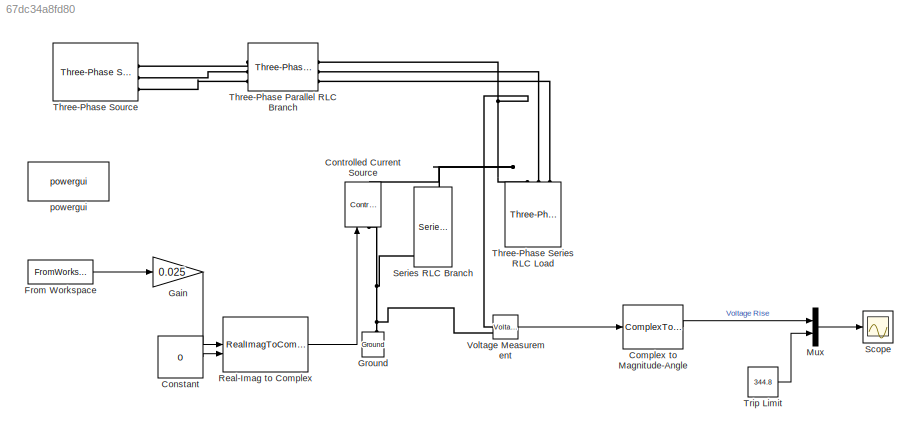
MODEL slx_67dc34a8fd80
KIND model
CONFIG AbsTol = auto
CONFIG EnableMultiTasking = off
CONFIG FixedStep = auto
CONFIG MaxStep = auto
CONFIG MinStep = auto
CONFIG RelTol = 1e-3
CONFIG SampleTimeConstraint = Unconstrained
CONFIG SolverName = VariableStepAuto
CONFIG StartTime = 0.0
CONFIG StopTime = 86400
BLOCK [ComplexToMagnitudeAngle] Complex to Magnitude-Angle 
BLOCK [Constant] Constant
  Value = 0
BLOCK [Reference] Controlled Current Source   REF=spsControlledCurrentSourceLib/Controlled Current Source
  LibrarySourceBlock = sps_lib/Sources/Controlled Current Source
  SourceBlock = spsControlledCurrentSourceLib/Controlled Current Source
  SourceType = Controlled Current Source
BLOCK [FromWorkspace] From Workspace 
  OutputAfterFinalValue = Setting to zero
  VariableName = solar_profile
BLOCK [Gain] Gain 
  Gain = 0.025
BLOCK [Reference] Ground  REF=spsGroundLib/Ground
  LibrarySourceBlock = sps_lib/Utilities/Ground
  NameLocation = right
  SourceBlock = spsGroundLib/Ground
  SourceType = Ground
BLOCK [Mux] Mux
  DisplayOption = bar
  Inputs = 2
BLOCK [RealImagToComplex] Real-Imag to Complex 
BLOCK [Scope] Scope
  Floating = off
  NumInputPorts = 1
  ScopeSpecificationString = Simulink.scopes.TimeScopeBlockCfg('CurrentConfiguration', extmgr.ConfigurationSet(extmgr.Configuration('Core','General UI',true),extmgr.Configuration('Core','Source UI',true),extmgr.Configuration('Sources','WiredSimulink',true),extmgr.Configuration('Visuals','Time Domain',true,'SerializedDisplays',{struct('MinYLimReal','317.13559','MaxYLimReal','368.63425','YLabelReal','','MinYLimMag','317.13559',...<+1514ch>
BLOCK [Reference] Series RLC Branch   REF=spsSeriesRLCBranchLib/Series RLC Branch
  LibrarySourceBlock = sps_lib/Passives/Series RLC Branch
  NameLocation = left
  SourceBlock = spsSeriesRLCBranchLib/Series RLC Branch
  SourceType = Series RLC Branch
BLOCK [Reference] Three-Phase Parallel RLC Branch   REF=spsThreePhaseParallelRLCBranchLib/Three-Phase
Parallel RLC Branch
  AttributesFormatString = \n
  LibrarySourceBlock = sps_lib/Passives/Three-Phase\nParallel RLC Branch
  SourceBlock = spsThreePhaseParallelRLCBranchLib/Three-Phase\nParallel RLC Branch
  SourceType = Three-Phase Parallel RLC Branch
BLOCK [Reference] Three-Phase Series RLC Load   REF=spsThreePhaseSeriesRLCLoadLib/Three-Phase
Series RLC Load
  AttributesFormatString = \n
  LibrarySourceBlock = sps_lib/Passives/Three-Phase\nSeries RLC Load
  SourceBlock = spsThreePhaseSeriesRLCLoadLib/Three-Phase\nSeries RLC Load
  SourceType = Three-Phase Series RLC Load
BLOCK [Reference] Three-Phase Source   REF=spsThreePhaseSourceLib/Three-Phase Source
  LibrarySourceBlock = sps_lib/Sources/Three-Phase Source
  SourceBlock = spsThreePhaseSourceLib/Three-Phase Source
  SourceType = Three-Phase Source
BLOCK [Constant] Trip Limit
  Value = 344.8
BLOCK [Reference] Voltage Measurement   REF=spsVoltageMeasurementLib/Voltage Measurement
  LibrarySourceBlock = sps_lib/Sensors and Measurements/Voltage Measurement
  SourceBlock = spsVoltageMeasurementLib/Voltage Measurement
  SourceType = Voltage Measurement
  UserDataPersistent = on
BLOCK [Reference] powergui   REF=sps_lib/powergui
  LibrarySourceBlock = sps_lib/powergui
  Priority = 1
  SourceBlock = sps_lib/powergui
  SourceType = PSB option menu block
LINE Complex to Magnitude-Angle :1 -> Mux:1
LINE Constant:1 -> Real-Imag to Complex :2
LINE From Workspace :1 -> Gain :1
LINE Gain :1 -> Real-Imag to Complex :1
LINE Mux:1 -> Scope:1
LINE Real-Imag to Complex :1 -> Controlled Current Source :1
LINE Trip Limit:1 -> Mux:2
LINE Voltage Measurement :1 -> Complex to Magnitude-Angle :1
PNET net1: Controlled Current Source :LConn1 -- Ground:LConn1 -- Series RLC Branch :RConn1 -- Voltage Measurement :LConn2
PNET net2: Controlled Current Source :RConn1 -- Series RLC Branch :LConn1 -- Three-Phase Parallel RLC Branch :RConn1 -- Three-Phase Series RLC Load :LConn1 -- Voltage Measurement :LConn1
PLINE Three-Phase Parallel RLC Branch :LConn1 -- Three-Phase Source :RConn1
PLINE Three-Phase Parallel RLC Branch :LConn2 -- Three-Phase Source :RConn2
PLINE Three-Phase Parallel RLC Branch :LConn3 -- Three-Phase Source :RConn3
PLINE Three-Phase Parallel RLC Branch :RConn2 -- Three-Phase Series RLC Load :LConn2
PLINE Three-Phase Parallel RLC Branch :RConn3 -- Three-Phase Series RLC Load :LConn3
note: PNET lines group multi-terminal physical nets as a canonical sorted terminal list (undirected conserving connections); 2-terminal nets keep the pairwise PLINE form
